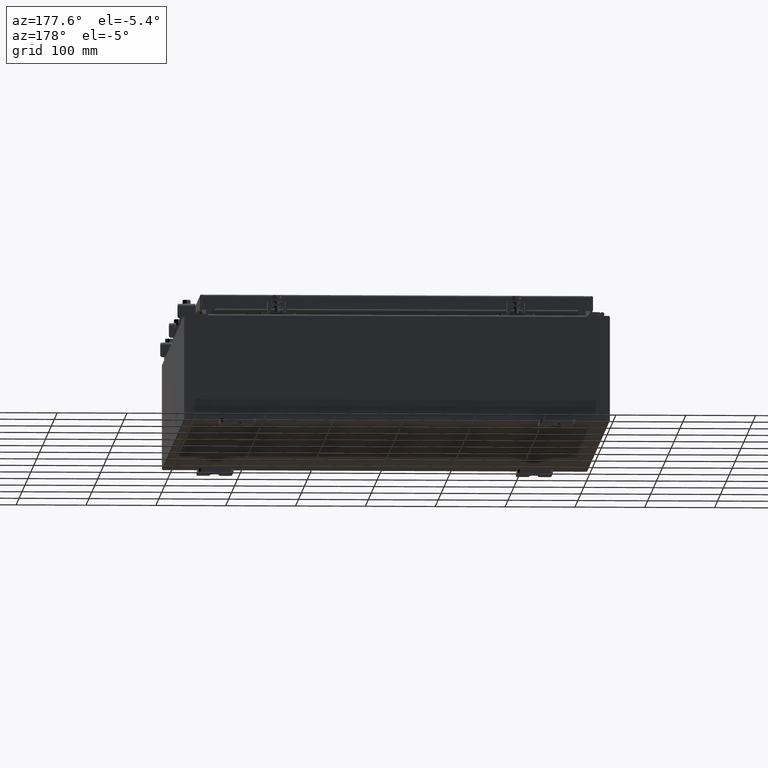
[diagram: clean part render]
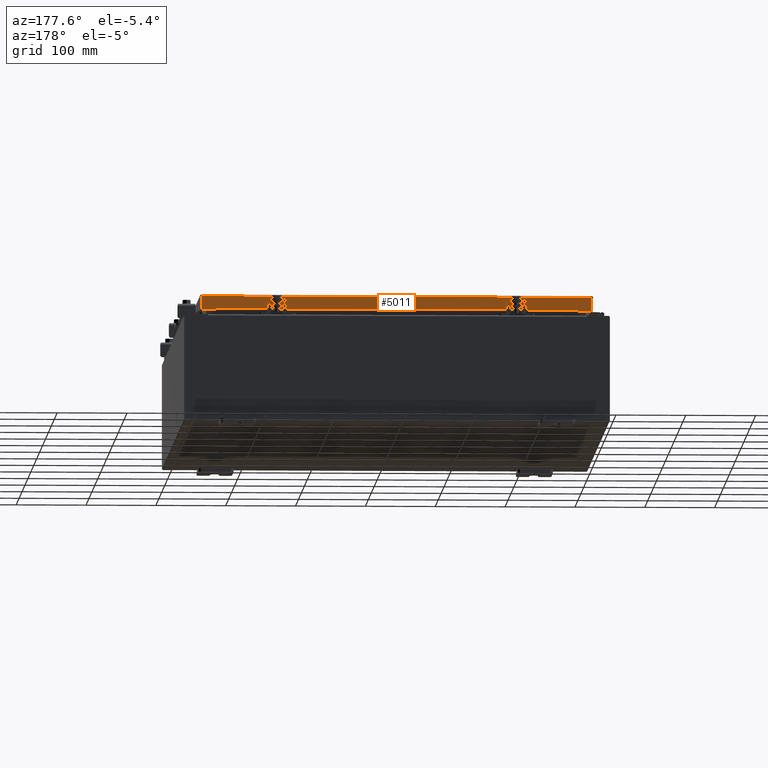
[diagram: same view with one face highlighted and labeled with its STEP entity id]
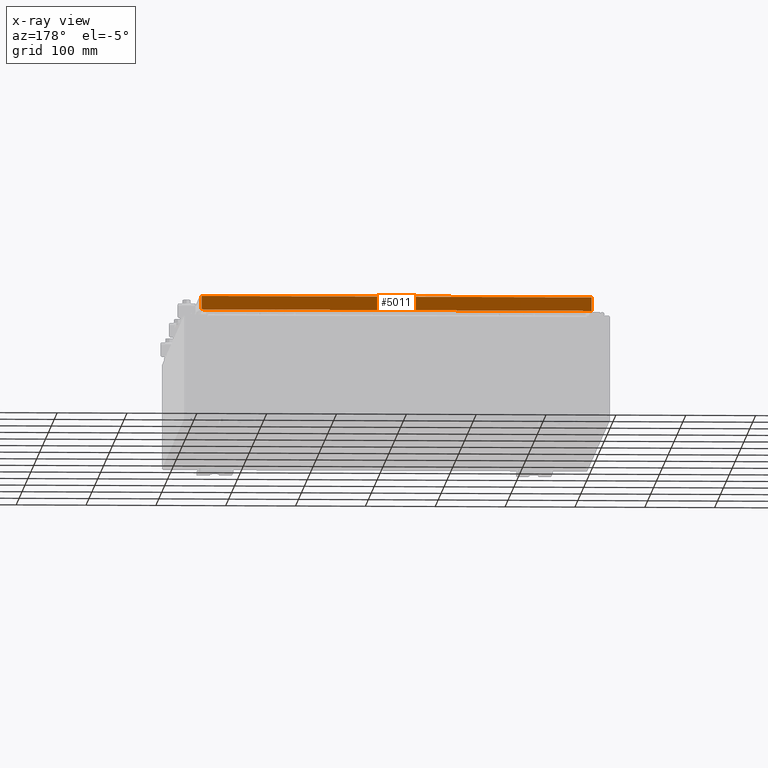
[diagram: x-ray of the same camera — body ghosted, the highlighted face saturated]
A machine part, auxiliary view. The second image highlights one B-rep face of the part: STEP entity #5011.
The next image is the same camera in x-ray: the body ghosted, the highlighted face saturated — about 0% of this face is hidden behind the body in this view.
In plain terms, the highlighted planar face has unit normal (0, -1, -0).
Its self-contained STEP definition (entity closure, byte-faithful):
#903 = CARTESIAN_POINT ( 'NONE',  ( 10.98915786437626900, 14.09399999999999900, 3.999012166344507700E-014 ) ) ;
#1691 = VECTOR ( 'NONE', #36100, 39.37007874015748100 ) ;
#2098 = VERTEX_POINT ( 'NONE', #35088 ) ;
#2834 = LINE ( 'NONE', #11444, #33097 ) ;
#2875 = VECTOR ( 'NONE', #3909, 39.37007874015748100 ) ;
#3849 = LINE ( 'NONE', #14016, #33208 ) ;
#3909 = DIRECTION ( 'NONE',  ( 1.000000000000000000, -0.0000000000000000000, -0.0000000000000000000 ) ) ;
#4078 = VERTEX_POINT ( 'NONE', #32437 ) ;
#4541 = FACE_OUTER_BOUND ( 'NONE', #32138, .T. ) ;
#5011 = ADVANCED_FACE ( 'NONE', ( #4541 ), #25744, .F. ) ;
#5385 = VERTEX_POINT ( 'NONE', #36376 ) ;
#7564 = CARTESIAN_POINT ( 'NONE',  ( -11.07799999999999900, 14.09399999999999900, -0.08770000000000007000 ) ) ;
#9792 = EDGE_CURVE ( 'NONE', #2098, #20574, #32869, .T. ) ;
#10626 = LINE ( 'NONE', #21418, #2875 ) ;
#11444 = CARTESIAN_POINT ( 'NONE',  ( -11.07799999999999900, 14.09400000000000100, -0.8500000000000024200 ) ) ;
#12526 = VECTOR ( 'NONE', #16425, 39.37007874015748100 ) ;
#13356 = CARTESIAN_POINT ( 'NONE',  ( 10.23915786437626700, 14.09399999999999900, -0.8500000000000033100 ) ) ;
#13876 = EDGE_CURVE ( 'NONE', #4078, #5385, #3849, .T. ) ;
#14016 = CARTESIAN_POINT ( 'NONE',  ( -11.07799999999999900, 14.09400000000000100, -0.8500000000000024200 ) ) ;
#14395 = DIRECTION ( 'NONE',  ( 1.000000000000000000, -4.379057701015054300E-047, 1.233005954894504400E-016 ) ) ;
#16425 = DIRECTION ( 'NONE',  ( -1.000000000000000000, -3.475696988576942200E-031, -9.473942235605600700E-046 ) ) ;
#16506 = CARTESIAN_POINT ( 'NONE',  ( -10.98915786437626900, 14.09399999999999900, -0.07469999999999978000 ) ) ;
#16972 = DIRECTION ( 'NONE',  ( 1.000000000000000000, -4.379057701015054300E-047, 1.233005954894504400E-016 ) ) ;
#17048 = DIRECTION ( 'NONE',  ( 0.0000000000000000000, 2.818880942772350300E-015, -1.000000000000000000 ) ) ;
#19881 = EDGE_CURVE ( 'NONE', #37375, #20574, #2834, .T. ) ;
#20187 = EDGE_CURVE ( 'NONE', #5385, #37375, #10626, .T. ) ;
#20574 = VERTEX_POINT ( 'NONE', #31957 ) ;
#21418 = CARTESIAN_POINT ( 'NONE',  ( -10.23915786437627100, 14.09399999999999900, -0.8500000000000033100 ) ) ;
#23263 = ORIENTED_EDGE ( 'NONE', *, *, #25419, .F. ) ;
#23877 = ORIENTED_EDGE ( 'NONE', *, *, #20187, .F. ) ;
#24674 = ORIENTED_EDGE ( 'NONE', *, *, #13876, .F. ) ;
#25134 = LINE ( 'NONE', #16506, #32993 ) ;
#25419 = EDGE_CURVE ( 'NONE', #29880, #4078, #25134, .T. ) ;
#25519 = ORIENTED_EDGE ( 'NONE', *, *, #35838, .F. ) ;
#25744 = PLANE ( 'NONE',  #37835 ) ;
#28687 = CARTESIAN_POINT ( 'NONE',  ( -4.898647335700341400E-030, 14.09399999999999900, 3.999012166344507700E-014 ) ) ;
#28883 = ORIENTED_EDGE ( 'NONE', *, *, #19881, .F. ) ;
#29880 = VERTEX_POINT ( 'NONE', #37917 ) ;
#31957 = CARTESIAN_POINT ( 'NONE',  ( 10.98915786437626700, 14.09400000000000100, -0.8499999999999996400 ) ) ;
#32138 = EDGE_LOOP ( 'NONE', ( #25519, #32441, #28883, #23877, #24674, #23263 ) ) ;
#32437 = CARTESIAN_POINT ( 'NONE',  ( -10.98915786437626900, 14.09400000000000100, -0.8500000000000024200 ) ) ;
#32441 = ORIENTED_EDGE ( 'NONE', *, *, #9792, .T. ) ;
#32869 = LINE ( 'NONE', #903, #1691 ) ;
#32993 = VECTOR ( 'NONE', #34074, 39.37007874015748100 ) ;
#33097 = VECTOR ( 'NONE', #14395, 39.37007874015748100 ) ;
#33208 = VECTOR ( 'NONE', #16972, 39.37007874015748100 ) ;
#34074 = DIRECTION ( 'NONE',  ( -0.0000000000000000000, 2.818880942772350300E-015, -1.000000000000000000 ) ) ;
#34610 = DIRECTION ( 'NONE',  ( 3.475696988576941300E-031, -1.000000000000000000, -2.818880942772350300E-015 ) ) ;
#34993 = LINE ( 'NONE', #7564, #12526 ) ;
#35088 = CARTESIAN_POINT ( 'NONE',  ( 10.98915786437626700, 14.09399999999999900, -0.08770000000000007000 ) ) ;
#35838 = EDGE_CURVE ( 'NONE', #2098, #29880, #34993, .T. ) ;
#36100 = DIRECTION ( 'NONE',  ( 0.0000000000000000000, 2.818880942772350300E-015, -1.000000000000000000 ) ) ;
#36376 = CARTESIAN_POINT ( 'NONE',  ( -10.23915786437627100, 14.09399999999999900, -0.8500000000000033100 ) ) ;
#37375 = VERTEX_POINT ( 'NONE', #13356 ) ;
#37835 = AXIS2_PLACEMENT_3D ( 'NONE', #28687, #34610, #17048 ) ;
#37917 = CARTESIAN_POINT ( 'NONE',  ( -10.98915786437626700, 14.09399999999999900, -0.08770000000000007000 ) ) ;